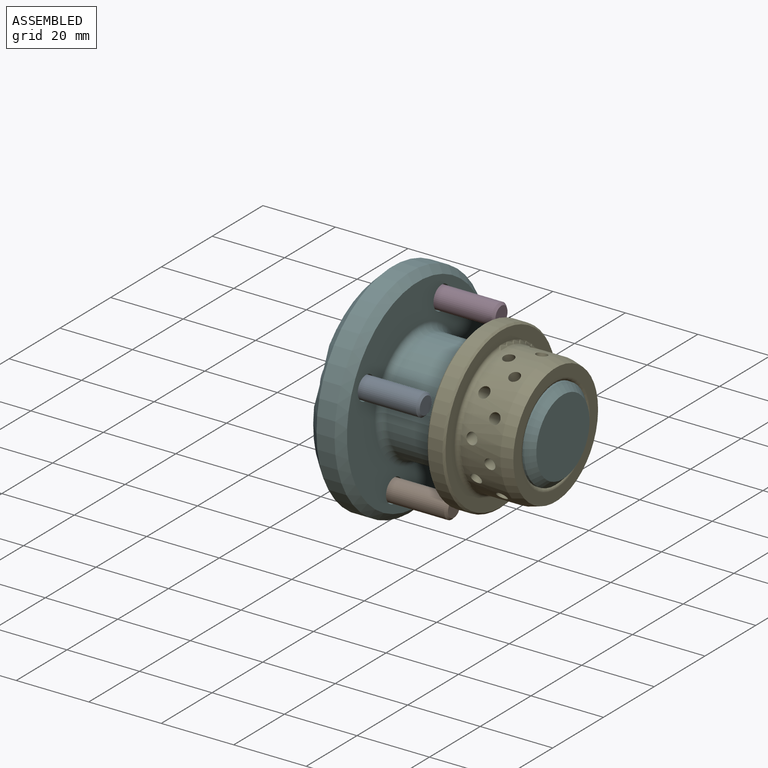
[diagram: assembled view]
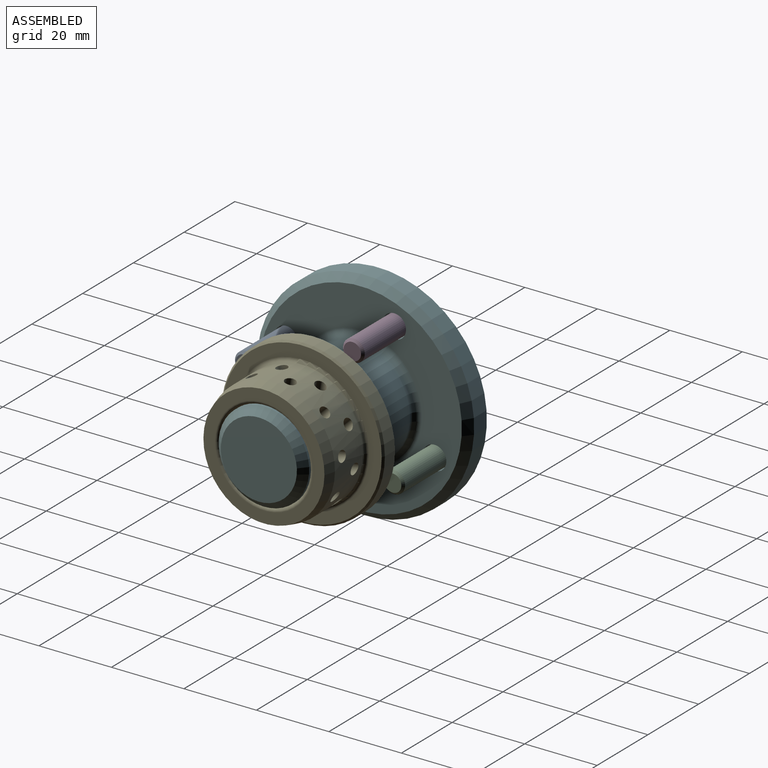
[diagram: assembled view, second angle]
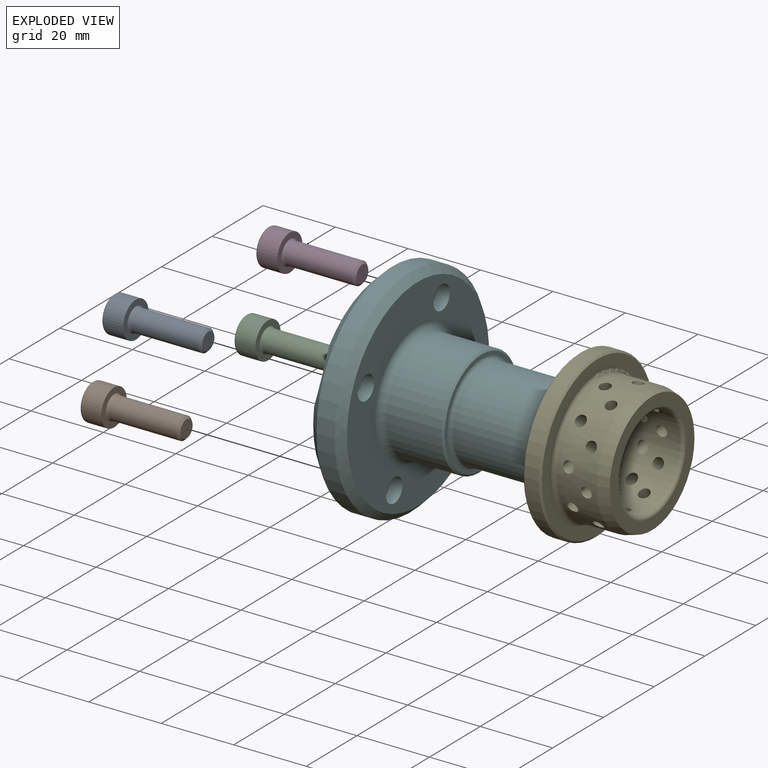
[diagram: exploded view]
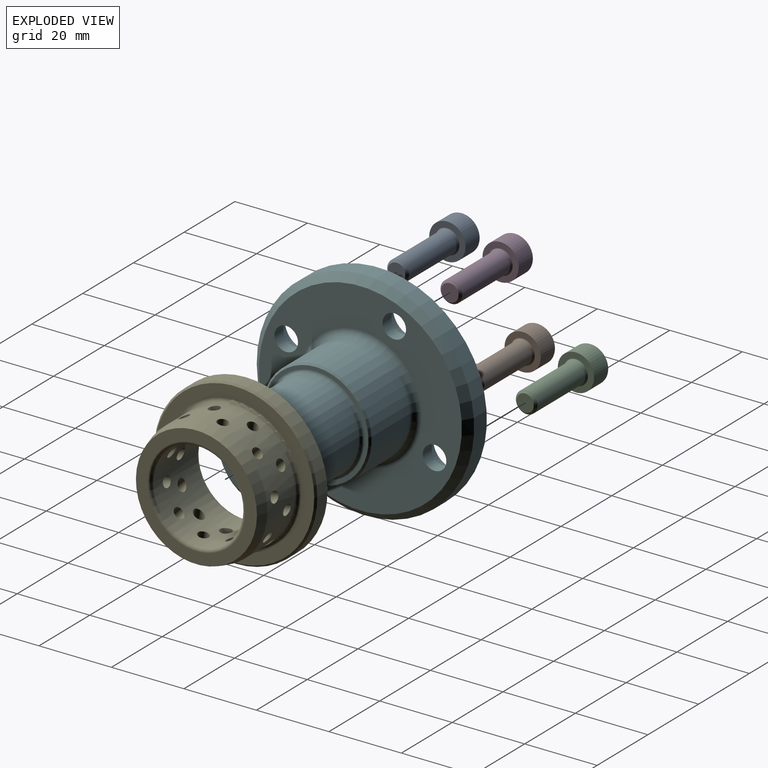
[diagram: exploded view, second angle]
ASSEMBLY  parts=6 mates=5
PART A: 24 faces, bbox 26x10.8x10.8 mm
  f0: cone r=1.25mm half-angle=60deg, axis (-1,0,0), area 22.7mm2, adj f13,f14,f15,f16,f17,f18
  f1: cone r=2.69mm half-angle=45deg, axis (-1,0,0), area 6.4mm2, adj f9,f10,f11,f12,f19,f20,f23
  f2: torus R=4.4mm, axis (-1,0,0), area 28.3mm2, adj f3,f23
  f3: cylinder r=5mm len=10mm, axis (-1,0,0), area 169.6mm2, adj f2,f22
  f4: torus R=3.4mm, axis (-1,0,0), area 6.3mm2, adj f5,f22
  f5: cone r=3.09mm half-angle=19.2deg, axis (-1,0,0), area 8.8mm2, adj f4,f6
  f6: torus R=3.25mm, axis (-1,0,0), area 1.6mm2, adj f5,f7
  f7: cylinder r=3mm len=18.71mm, axis (-1,0,0), area 352.6mm2, adj f6,f8
  f8: cone r=2.69mm half-angle=45deg, axis (-1,0,0), area 14.7mm2, adj f7,f21
  f9: plane 3.7x2.5mm, normal (0,-0.87,0.5), area 9.9mm2, adj f1,f10,f11,f15,f16
  f10: plane 3.7x2.89mm, normal (0,0,1), area 9.9mm2, adj f1,f9,f12,f16,f17
  f11: plane 3.7x2.5mm, normal (0,-0.87,-0.5), area 9.9mm2, adj f1,f9,f14,f15,f19
  f12: plane 3.7x2.5mm, normal (0,0.87,0.5), area 9.9mm2, adj f1,f10,f17,f18,f20
  f13: plane 2.17x1.25mm, normal (-1,0,0), area 0.3mm2, adj f0,f19,f20
  f14: plane 2.17x1.25mm, normal (-1,0,0), area 0.3mm2, adj f0,f11,f19
  f15: plane 2.5x0.72mm, normal (-1,0,0), area 0.3mm2, adj f0,f9,f11
  f16: plane 2.17x1.25mm, normal (-1,0,0), area 0.3mm2, adj f0,f9,f10
  f17: plane 2.17x1.25mm, normal (-1,0,0), area 0.3mm2, adj f0,f10,f12
  f18: plane 2.5x0.72mm, normal (-1,0,0), area 0.3mm2, adj f0,f12,f20
  f19: plane 3.7x2.89mm, normal (0,0,-1), area 9.9mm2, adj f1,f11,f13,f14,f20
  f20: plane 3.7x2.5mm, normal (0,0.87,-0.5), area 9.9mm2, adj f1,f12,f13,f18,f19
  f21: plane 4.77x4.77mm, normal (1,0,0), area 17.9mm2, adj f8
  f22: plane 10x10mm, normal (1,0,0), area 42.2mm2, adj f3,f4
  f23: plane 8.8x8.8mm, normal (-1,0,0), area 34.6mm2, adj f1,f2
PART B: same geometry as A
PART C: same geometry as A
PART D: same geometry as A
PART E: 56 faces, bbox 20x45x45 mm
  f0: cylinder r=12.5mm len=25mm, axis (-1,0,0), area 1187.6mm2, adj f6,f8,f36,f37,f38,f39,f40,f41
  f1: cylinder r=17.5mm len=35mm, axis (-1,0,0), area 1066.7mm2, adj f7,f11,f36,f37,f38,f39,f40,f41
  f2: plane 33.4x33.4mm, normal (1,0,0), area 303.7mm2, adj f6,f11
  f3: cylinder r=22.5mm len=45mm, axis (1,0,0), area 565.5mm2, adj f9,f10
  f4: plane 44x44mm, normal (-1,0,0), area 775.2mm2, adj f8,f10,f12,f14,f16,f18,f20,f22
  f5: plane 44x44mm, normal (1,0,0), area 445.3mm2, adj f7,f9
  f6: torus R=13.5mm, axis (-1,0,0), area 127mm2, adj f0,f2
  f7: torus R=18.5mm, axis (-1,0,0), area 176.3mm2, adj f1,f5
  f8: torus R=14.5mm, axis (-1,0,0), area 261.1mm2, adj f0,f4
  f9: cone r=22.5mm half-angle=45deg, axis (-1,0,0), area 98.9mm2, adj f3,f5
  f10: cone r=22mm half-angle=45deg, axis (1,0,0), area 98.9mm2, adj f3,f4
  f11: cone r=17.5mm half-angle=14.9deg, axis (-1,0,0), area 333.6mm2, adj f1,f2
  f12: cylinder r=1.5mm len=4mm, axis (-1,0,0), area 37.7mm2, adj f4,f13
  f13: plane 3x3mm, normal (-1,0,0), area 7.1mm2, adj f12
  f14: cylinder r=1.5mm len=4mm, axis (-1,0,0), area 37.7mm2, adj f4,f15
  f15: plane 3x3mm, normal (-1,0,0), area 7.1mm2, adj f14
  f16: cylinder r=1.5mm len=4mm, axis (-1,0,0), area 37.7mm2, adj f4,f17
  f17: plane 3x3mm, normal (-1,0,0), area 7.1mm2, adj f16
  f18: cylinder r=1.5mm len=4mm, axis (-1,0,0), area 37.7mm2, adj f4,f19
  f19: plane 3x3mm, normal (-1,0,0), area 7.1mm2, adj f18
  f20: cylinder r=1.5mm len=4mm, axis (-1,0,0), area 37.7mm2, adj f4,f21
  f21: plane 3x3mm, normal (-1,0,0), area 7.1mm2, adj f20
  f22: cylinder r=1.5mm len=4mm, axis (-1,0,0), area 37.7mm2, adj f4,f23
  f23: plane 3x3mm, normal (-1,0,0), area 7.1mm2, adj f22
  f24: cylinder r=1.5mm len=4mm, axis (-1,0,0), area 37.7mm2, adj f4,f25
  f25: plane 3x3mm, normal (-1,0,0), area 7.1mm2, adj f24
  f26: cylinder r=1.5mm len=4mm, axis (-1,0,0), area 37.7mm2, adj f4,f27
  f27: plane 3x3mm, normal (-1,0,0), area 7.1mm2, adj f26
  f28: cylinder r=1.5mm len=4mm, axis (-1,0,0), area 37.7mm2, adj f4,f29
  f29: plane 3x3mm, normal (-1,0,0), area 7.1mm2, adj f28
  f30: cylinder r=1.5mm len=4mm, axis (-1,0,0), area 37.7mm2, adj f4,f31
  f31: plane 3x3mm, normal (-1,0,0), area 7.1mm2, adj f30
  f32: cylinder r=1.5mm len=4mm, axis (-1,0,0), area 37.7mm2, adj f4,f33
  f33: plane 3x3mm, normal (-1,0,0), area 7.1mm2, adj f32
  f34: cylinder r=1.5mm len=4mm, axis (-1,0,0), area 37.7mm2, adj f4,f35
  f35: plane 3x3mm, normal (-1,0,0), area 7.1mm2, adj f34
  f36: cylinder r=1.5mm len=6.47mm, axis (0,0,1), area 50.3mm2, adj f0,f1
  f37: cylinder r=1.5mm len=5.09mm, axis (0,0,1), area 47.3mm2, adj f0,f1
  f38: cylinder r=1.5mm len=7mm, axis (0,-0.59,0.81), area 50.3mm2, adj f0,f1
  f39: cylinder r=1.5mm len=5.88mm, axis (0,-0.59,0.81), area 47.3mm2, adj f0,f1
  f40: cylinder r=1.5mm len=7.08mm, axis (0,-0.95,0.31), area 50.3mm2, adj f0,f1
  f41: cylinder r=1.5mm len=5.77mm, axis (0,-0.95,0.31), area 47.3mm2, adj f0,f1
  f42: cylinder r=1.5mm len=7.08mm, axis (0,-0.95,-0.31), area 50.3mm2, adj f0,f1
  f43: cylinder r=1.5mm len=5.77mm, axis (0,-0.95,-0.31), area 47.3mm2, adj f0,f1
  f44: cylinder r=1.5mm len=7mm, axis (0,-0.59,-0.81), area 50.3mm2, adj f0,f1
  f45: cylinder r=1.5mm len=5.88mm, axis (0,-0.59,-0.81), area 47.3mm2, adj f0,f1
  f46: cylinder r=1.5mm len=6.47mm, axis (0,0,-1), area 50.3mm2, adj f0,f1
  f47: cylinder r=1.5mm len=5.09mm, axis (0,0,-1), area 47.3mm2, adj f0,f1
  f48: cylinder r=1.5mm len=7mm, axis (0,0.59,-0.81), area 50.3mm2, adj f0,f1
  f49: cylinder r=1.5mm len=5.88mm, axis (0,0.59,-0.81), area 47.3mm2, adj f0,f1
  f50: cylinder r=1.5mm len=7.08mm, axis (0,0.95,-0.31), area 50.3mm2, adj f0,f1
  f51: cylinder r=1.5mm len=5.77mm, axis (0,0.95,-0.31), area 47.3mm2, adj f0,f1
  f52: cylinder r=1.5mm len=7.08mm, axis (0,0.95,0.31), area 50.3mm2, adj f0,f1
  f53: cylinder r=1.5mm len=5.77mm, axis (0,0.95,0.31), area 47.3mm2, adj f0,f1
  f54: cylinder r=1.5mm len=7mm, axis (0,0.59,0.81), area 50.3mm2, adj f0,f1
  f55: cylinder r=1.5mm len=5.88mm, axis (0,0.59,0.81), area 47.3mm2, adj f0,f1
PART F: 29 faces, bbox 50x60x60 mm
  f0: cone r=30mm half-angle=45deg, axis (1,0,0), area 662.9mm2, adj f2,f3,f25,f26,f27,f28
  f1: plane 56x56mm, normal (1,0,0), area 1422.4mm2, adj f8,f9,f13,f16,f19,f22
  f2: cylinder r=30mm len=60mm, axis (1,0,0), area 942.5mm2, adj f0,f9
  f3: plane 54x54mm, normal (-1,0,0), area 1632.5mm2, adj f0,f25,f26,f27,f28
  f4: cylinder r=15mm len=30mm, axis (1,0,0), area 1413.7mm2, adj f8,f10
  f5: plane 29x29mm, normal (1,0,0), area 88mm2, adj f10,f11
  f6: plane 21x21mm, normal (1,0,0), area 346.4mm2, adj f12
  f7: cylinder r=12.5mm len=25mm, axis (-1,0,0), area 1531.5mm2, adj f11,f12
  f8: torus R=17mm, axis (1,0,0), area 310.4mm2, adj f1,f4
  f9: cone r=28mm half-angle=45deg, axis (-1,0,0), area 515.4mm2, adj f1,f2
  f10: cone r=14.5mm half-angle=45deg, axis (-1,0,0), area 65.5mm2, adj f4,f5
  f11: torus R=13.5mm, axis (1,0,0), area 127mm2, adj f5,f7
  f12: cone r=10.5mm half-angle=45deg, axis (-1,0,0), area 204.4mm2, adj f6,f7
  f13: cylinder r=3.25mm len=6.5mm, axis (-1,0,0), area 71.5mm2, adj f1,f14
  f14: plane 12x12mm, normal (-1,0,0), area 79.9mm2, adj f13,f15
  f15: cylinder r=6mm len=12mm, axis (-1,0,0), area 169.6mm2, adj f14,f28
  f16: cylinder r=3.25mm len=6.5mm, axis (-1,0,0), area 71.5mm2, adj f1,f17
  f17: plane 12x12mm, normal (-1,0,0), area 79.9mm2, adj f16,f18
  f18: cylinder r=6mm len=12mm, axis (-1,0,0), area 169.6mm2, adj f17,f27
  f19: cylinder r=3.25mm len=6.5mm, axis (-1,0,0), area 71.5mm2, adj f1,f20
  f20: plane 12x12mm, normal (-1,0,0), area 79.9mm2, adj f19,f21
  f21: cylinder r=6mm len=12mm, axis (-1,0,0), area 169.6mm2, adj f20,f26
  f22: cylinder r=3.25mm len=6.5mm, axis (-1,0,0), area 71.5mm2, adj f1,f23
  f23: plane 12x12mm, normal (-1,0,0), area 79.9mm2, adj f22,f24
  f24: cylinder r=6mm len=12mm, axis (-1,0,0), area 169.6mm2, adj f23,f25
  f25: cone r=6mm half-angle=45deg, axis (-1,0,0), area 96.9mm2, adj f0,f3,f24
  f26: cone r=6mm half-angle=45deg, axis (-1,0,0), area 96.9mm2, adj f0,f3,f21
  f27: cone r=6mm half-angle=45deg, axis (-1,0,0), area 96.9mm2, adj f0,f3,f18
  f28: cone r=6mm half-angle=45deg, axis (-1,0,0), area 96.9mm2, adj f0,f3,f15
PLACE A rot(axis=(1,0,0),110.4deg) t=(-78.3,-38.16,-11.51)mm
PLACE B rot(axis=(1,0,0),110.4deg) t=(-78.3,-27.04,-41.32)mm
PLACE C rot(axis=(1,0,0),110.4deg) t=(-78.3,2.77,-30.2)mm
PLACE D rot(axis=(1,0,0),110.4deg) t=(-78.3,-8.34,-0.39)mm
PLACE E rot(axis=(-1,0,0),82.2deg) t=(-20.05,-17.69,-20.85)mm fixed
PLACE F rot(axis=(1,0,0),110.4deg) t=(-20.05,-17.69,-20.85)mm
MATE fastened A.f0 <-> F.f19  axis (1,0,0) through (-78.3,-38.16,-11.51)mm
MATE fastened C.f0 <-> F.f13  axis (1,0,0) through (-78.3,2.77,-30.2)mm
MATE revolute F.f0 <-> E.f0  axis (1,0,0) through (-36.8,-17.69,-20.85)mm
MATE fastened B.f0 <-> F.f16  axis (1,0,0) through (-78.3,-27.04,-41.32)mm
MATE fastened D.f0 <-> F.f22  axis (1,0,0) through (-78.3,-8.34,-0.39)mm
